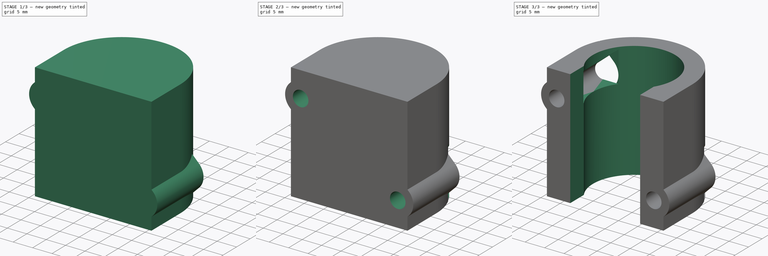
[diagram: build sequence overview — one tinted view per stage of 3, left to right]
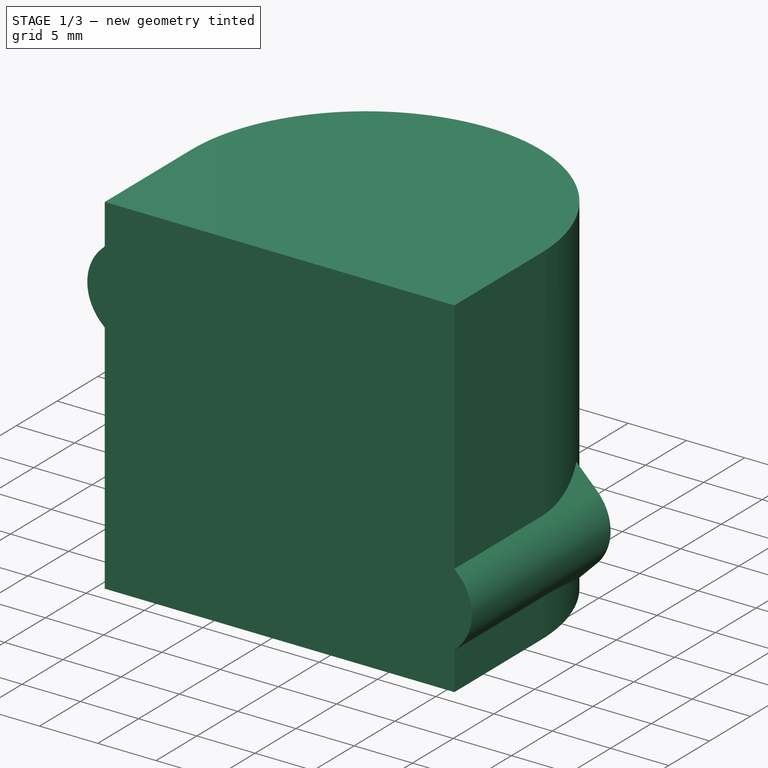
[diagram: stage 1 of 3 — iso view after this stage's code; geometry added in this stage tinted green]
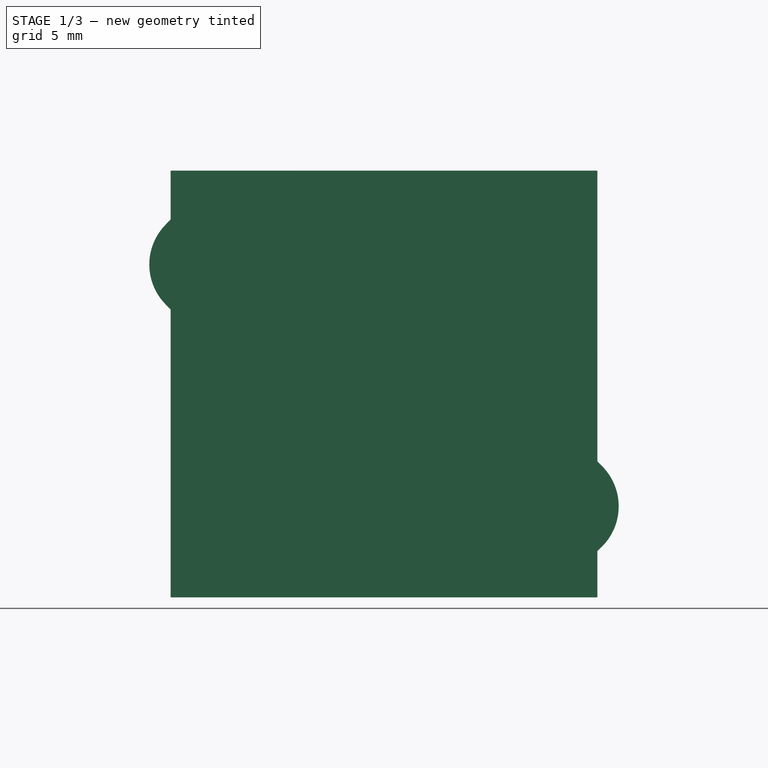
[diagram: stage 1 of 3 — front view after this stage's code; geometry added in this stage tinted green]
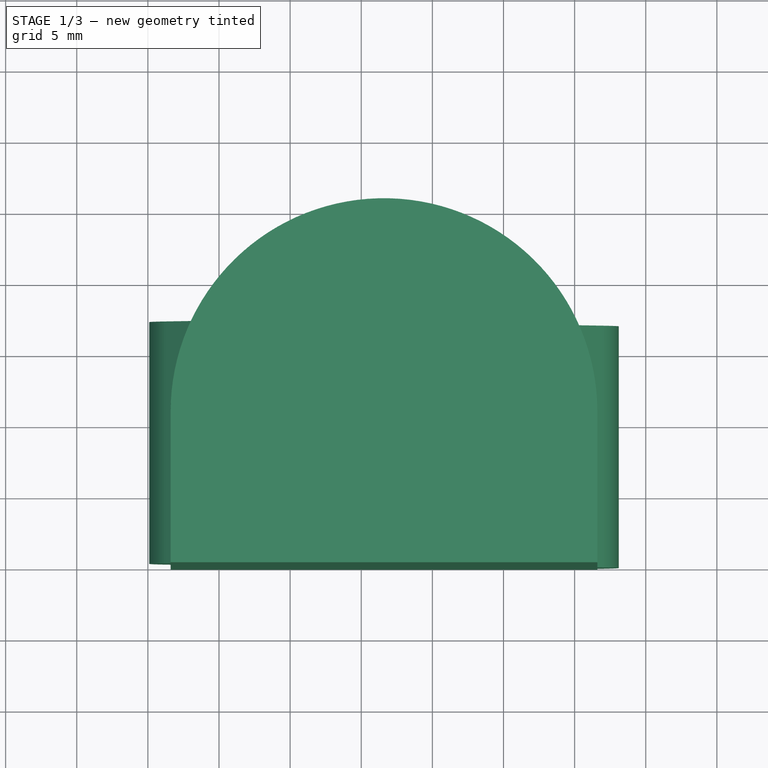
[diagram: stage 1 of 3 — top view after this stage's code; geometry added in this stage tinted green]
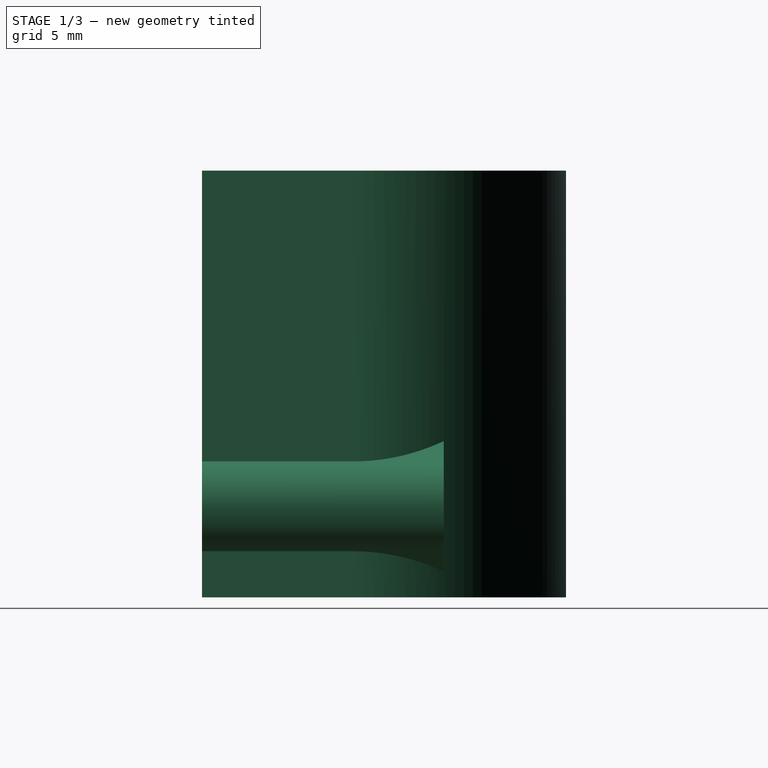
[diagram: stage 1 of 3 — right view after this stage's code; geometry added in this stage tinted green]
FCSTD DOCUMENT  (FreeCAD 0.17R13541 (Git))
Label: 16_492_z-bearing-clamp
License: All rights reserved
LicenseURL: http://en.wikipedia.org/wiki/All_rights_reserved
objects: Sketcher::SketchObject×6, PartDesign::Pocket×4, PartDesign::Pad×2, PartDesign::Body×1
note: 19 computed .brp shape members not serialized (recipe doc carries the construction recipe); baked Part::Feature solids carry a one-line shape summary decoded from their .brp

FEATURE [Sketcher::SketchObject] Sketch
  AttachmentOffset = pos=(0,0,1) rot=(0,0,1;0rad)
  MapMode = 5
  Placement = pos=(0,0,1) rot=(0,0,1;0rad)
  Support = -> [XY_Plane]
  expr: Constraints[14] = 21.199999999999999 / 2
  sketch-geometry (9):
    g0: LineSegment StartX=1.6 StartY=0 StartZ=0 EndX=1.6 EndY=10.6 EndZ=0
    g1: LineSegment StartX=31.6 StartY=0 StartZ=0 EndX=31.6 EndY=10.6 EndZ=0
    g2: ArcOfCircle CenterX=16.6 CenterY=10.6 CenterZ=0 NormalX=0 NormalY=0 NormalZ=1 AngleXU=0 Radius=15 StartAngle=0 EndAngle=3.14159
    g3: ArcOfCircle [constr] CenterX=16.6 CenterY=10.6 CenterZ=0 NormalX=0 NormalY=0 NormalZ=1 AngleXU=0 Radius=10.6 StartAngle=5.72659 EndAngle=9.98138
    g4: LineSegment [constr] StartX=7.6 StartY=5 StartZ=0 EndX=7.6 EndY=0 EndZ=0
    g5: LineSegment [constr] StartX=25.6 StartY=5 StartZ=0 EndX=25.6 EndY=0 EndZ=0
    g6: LineSegment [constr] StartX=1.6 StartY=0 StartZ=0 EndX=7.6 EndY=0 EndZ=0
    g7: LineSegment [constr] StartX=25.6 StartY=0 StartZ=0 EndX=31.6 EndY=0 EndZ=0
    g8: LineSegment StartX=1.6 StartY=0 StartZ=0 EndX=31.6 EndY=0 EndZ=0
  constraints (25):
    c: Vertical(g0)
    c: Vertical(g1)
    c: Distance(g0,g1) = 30
    c: PointOnObject(g0,g-1)
    c: Tangent(g2,g0) = 1.5708
    c: Tangent(g1,g2) = -1.5708
    c: DistanceY(g-1,g2) = 10.6
    c: Coincident(g3,g2)
    c: Vertical(g5)
    c: Vertical(g4)
    c: PointOnObject(g4,g-1)
    c: PointOnObject(g5,g-1)
    c: Coincident(g4,g3)
    c: Coincident(g5,g3)
    c: Radius(g3) = 10.6
    c: Coincident(g7,g1)
    c: Coincident(g7,g5)
    c: Coincident(g6,g0)
    c: Coincident(g6,g4)
    c: Distance(g4,g5) = 18
    c: Coincident(g8,g0)
    c: Coincident(g8,g1)
    c: Equal(g4,g5)
    c: PointOnObject(g1,g-1)
    c: Distance(g-1,g0) = 1.6
FEATURE [PartDesign::Pad] Pad  label="MainBearingClamp"
  Length = 30
  Length2 = 100
  Profile = -> Sketch
  Type = 0
FEATURE [Sketcher::SketchObject] Sketch001
  MapMode = 5
  Placement = pos=(0,0,0) rot=(1,0,0;1.5708rad)
  Support = -> [XZ_Plane]
  sketch-geometry (22):
    g0: Circle [constr] CenterX=29.1 CenterY=7.4 CenterZ=0 NormalX=0 NormalY=0 NormalZ=1 AngleXU=0 Radius=2
    g1: Circle [constr] CenterX=4.1 CenterY=24.4 CenterZ=0 NormalX=0 NormalY=0 NormalZ=1 AngleXU=0 Radius=2
    g2: LineSegment [constr] StartX=1.6 StartY=31 StartZ=0 EndX=31.6 EndY=31 EndZ=0
    g3: LineSegment [constr] StartX=31.6 StartY=31 StartZ=0 EndX=31.6 EndY=1 EndZ=0
    g4: LineSegment [constr] StartX=31.6 StartY=1 StartZ=0 EndX=1.6 EndY=1 EndZ=0
    g5: LineSegment [constr] StartX=1.6 StartY=1 StartZ=0 EndX=1.6 EndY=31 EndZ=0
    g6: LineSegment [constr] StartX=27.2 StartY=31 StartZ=0 EndX=27.2 EndY=1 EndZ=0
    g7: LineSegment [constr] StartX=6 StartY=1 StartZ=0 EndX=6 EndY=31 EndZ=0
    g8: ArcOfCircle CenterX=4.1 CenterY=24.4 CenterZ=0 NormalX=0 NormalY=0 NormalZ=1 AngleXU=0 Radius=4 StartAngle=2.35619 EndAngle=3.92699
    g9: ArcOfCircle CenterX=29.1 CenterY=7.4 CenterZ=0 NormalX=0 NormalY=0 NormalZ=1 AngleXU=0 Radius=4 StartAngle=5.49779 EndAngle=7.06858
    g10: LineSegment StartX=1.27157 StartY=27.2284 StartZ=0 EndX=4.1 EndY=30.0569 EndZ=0
    g11: LineSegment StartX=4.1 StartY=30.0569 StartZ=0 EndX=8.1 EndY=30.0569 EndZ=0
    g12: LineSegment StartX=8.1 StartY=30.0569 StartZ=0 EndX=8.1 EndY=18.7431 EndZ=0
    g13: LineSegment StartX=8.1 StartY=18.7431 StartZ=0 EndX=4.1 EndY=18.7431 EndZ=0
    g14: LineSegment StartX=4.1 StartY=18.7431 StartZ=0 EndX=1.27157 EndY=21.5716 EndZ=0
    g15: LineSegment StartX=31.9284 StartY=10.2284 StartZ=0 EndX=29.1 EndY=13.0569 EndZ=0
    g16: LineSegment StartX=29.1 StartY=13.0569 StartZ=0 EndX=25.1 EndY=13.0569 EndZ=0
    g17: LineSegment StartX=25.1 StartY=13.0569 StartZ=0 EndX=25.1 EndY=1.74315 EndZ=0
    g18: LineSegment StartX=25.1 StartY=1.74315 StartZ=0 EndX=29.1 EndY=1.74315 EndZ=0
    g19: LineSegment StartX=29.1 StartY=1.74315 StartZ=0 EndX=31.9284 EndY=4.57157 EndZ=0
    g20: LineSegment [constr] StartX=4.1 StartY=30.0569 StartZ=0 EndX=4.1 EndY=18.7431 EndZ=0
    g21: LineSegment [constr] StartX=29.1 StartY=13.0569 StartZ=0 EndX=29.1 EndY=1.74315 EndZ=0
  constraints (62):
    c: Radius(g0) = 2
    c: Equal(g1,g0)
    c: Coincident(g2,g3)
    c: Coincident(g3,g4)
    c: Coincident(g4,g5)
    c: Coincident(g5,g2)
    c: Horizontal(g2)
    c: Horizontal(g4)
    c: Vertical(g3)
    c: Vertical(g5)
    c: Distance(g2) = 30
    c: Distance(g3) = 30
    c: DistanceX(g-2,g2) = 1.6
    c: Vertical(g6)
    c: Vertical(g7)
    c: PointOnObject(g6,g2)
    c: PointOnObject(g7,g2)
    c: PointOnObject(g7,g4)
    c: PointOnObject(g6,g4)
    c: Distance(g7,g6) = 21.2
    c: Distance(g2,g7) = 4.4
    c: DistanceX(g1,g0) = 25
    c: DistanceY(g0,g1) = 17
    c: DistanceY(g-1,g0) = 7.4
    c: DistanceX(g-2,g0) = 29.1
    c: Coincident(g1,g8)
    c: Coincident(g9,g0)
    c: Equal(g8,g9)
    c: Radius(g9) = 4
    c: Coincident(g10,g11)
    c: Coincident(g11,g12)
    c: Coincident(g12,g13)
    c: Coincident(g13,g14)
    c: Coincident(g15,g16)
    c: Coincident(g16,g17)
    c: Coincident(g17,g18)
    c: Coincident(g18,g19)
    c: Horizontal(g13)
    c: Horizontal(g11)
    c: Horizontal(g16)
    c: Horizontal(g18)
    c: Vertical(g12)
    c: Vertical(g17)
    c: Parallel(g10,g19)
    c: Parallel(g14,g15)
    c: Tangent(g14,g8) = 1.5708
    c: Tangent(g10,g8) = 1.5708
    c: Coincident(g13,g20)
    c: Coincident(g20,g10)
    c: PointOnObject(g1,g20)
    c: Vertical(g20)
    c: Coincident(g21,g15)
    c: PointOnObject(g0,g21)
    c: Coincident(g18,g21)
    c: Tangent(g19,g9) = -1.5708
    c: Tangent(g9,g15) = -1.5708
    c: Angle(g10,g11) = 2.35619
    c: Angle(g13,g14) = 2.35619
    c: Distance(g11,g20) = 4
    c: Distance(g16,g21) = 4
    c: Vertical(g21)
    c: DistanceY(g-1,g4) = 1
FEATURE [PartDesign::Pad] Pad001  label="BoltBoss"
  BaseFeature = -> Pad
  Length = 17
  Length2 = 100
  Profile = -> Sketch001
  Reversed = true
  Type = 0
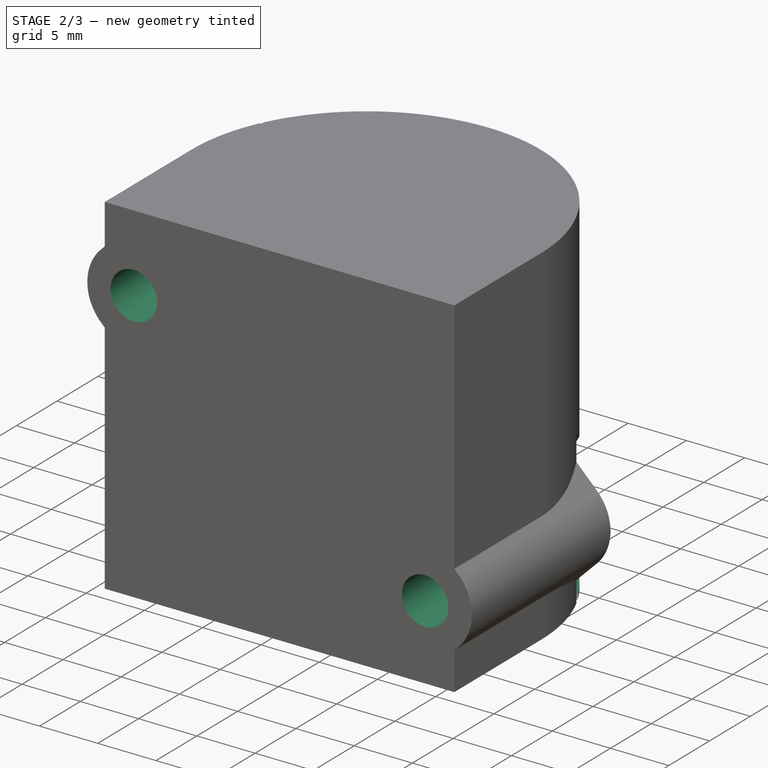
[diagram: stage 2 of 3 — iso view after this stage's code; geometry added in this stage tinted green]
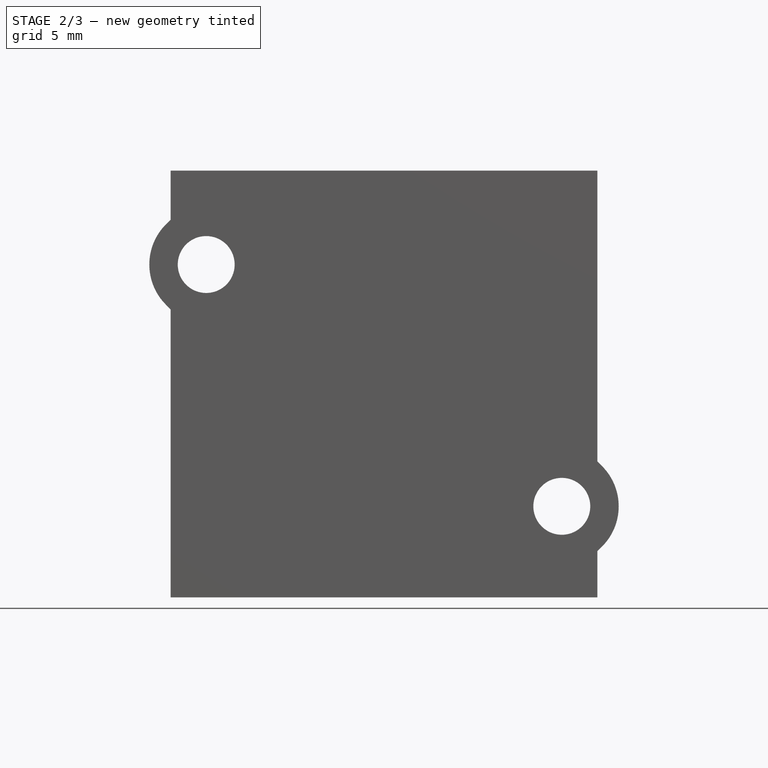
[diagram: stage 2 of 3 — front view after this stage's code; geometry added in this stage tinted green]
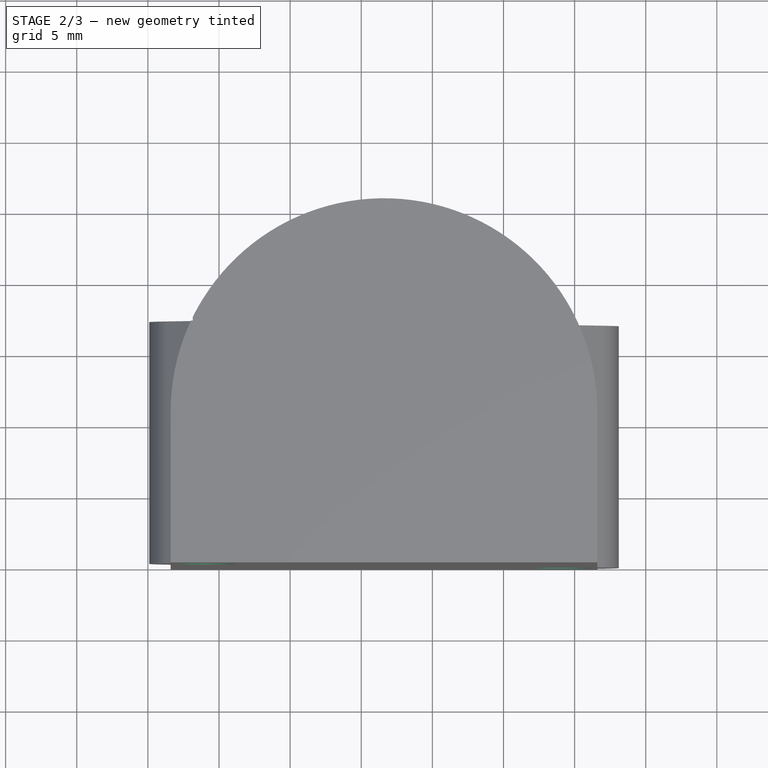
[diagram: stage 2 of 3 — top view after this stage's code; geometry added in this stage tinted green]
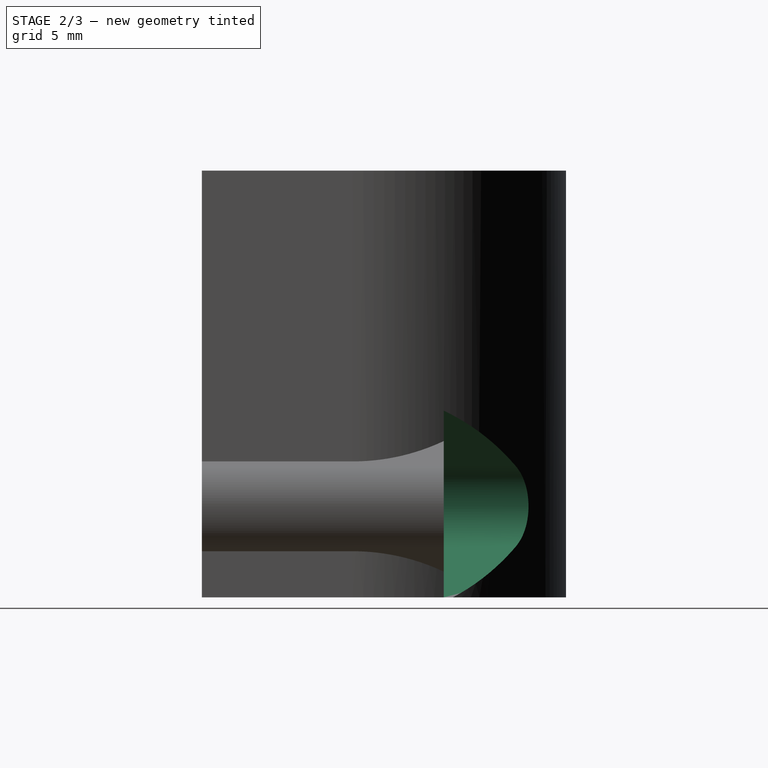
[diagram: stage 2 of 3 — right view after this stage's code; geometry added in this stage tinted green]
FEATURE [Sketcher::SketchObject] Sketch002
  MapMode = 5
  Placement = pos=(0,0,0) rot=(1,0,0;1.5708rad)
  Support = -> [XZ_Plane]
  sketch-geometry (4):
    g0: Circle [constr] CenterX=29.1 CenterY=7.4 CenterZ=0 NormalX=0 NormalY=0 NormalZ=1 AngleXU=0 Radius=4
    g1: Circle CenterX=29.1 CenterY=7.4 CenterZ=0 NormalX=0 NormalY=0 NormalZ=1 AngleXU=0 Radius=2
    g2: Circle [constr] CenterX=4.1 CenterY=24.4 CenterZ=0 NormalX=0 NormalY=0 NormalZ=1 AngleXU=0 Radius=4
    g3: Circle CenterX=4.1 CenterY=24.4 CenterZ=0 NormalX=0 NormalY=0 NormalZ=1 AngleXU=0 Radius=2
  constraints (10):
    c: Coincident(g1,g0)
    c: Radius(g1) = 2
    c: Radius(g0) = 4
    c: DistanceY(g-1,g0) = 7.4
    c: DistanceX(g-2,g0) = 29.1
    c: Coincident(g3,g2)
    c: Equal(g3,g1)
    c: Equal(g2,g0)
    c: DistanceY(g0,g2) = 17
    c: DistanceX(g2,g0) = 25
FEATURE [PartDesign::Pocket] Pocket  label="BoltHole"
  BaseFeature = -> Pad001
  Length = 5
  Length2 = 100
  Profile = -> Sketch002
  Type = 1
FEATURE [Sketcher::SketchObject] Sketch003
  AttachmentOffset = pos=(0,0,-17) rot=(0,0,1;0rad)
  MapMode = 5
  Placement = pos=(0,17,2e-12) rot=(1,0,0;1.5708rad)
  Support = -> [XZ_Plane]
  sketch-geometry (14):
    g0: Circle [constr] CenterX=29.1 CenterY=7.4 CenterZ=0 NormalX=0 NormalY=0 NormalZ=1 AngleXU=0 Radius=2
    g1: Circle [constr] CenterX=4.1 CenterY=24.4 CenterZ=0 NormalX=0 NormalY=0 NormalZ=1 AngleXU=0 Radius=2
    g2: LineSegment [constr] StartX=1.6 StartY=31 StartZ=0 EndX=31.6 EndY=31 EndZ=0
    g3: LineSegment [constr] StartX=31.6 StartY=31 StartZ=0 EndX=31.6 EndY=1 EndZ=0
    g4: LineSegment [constr] StartX=31.6 StartY=1 StartZ=0 EndX=1.6 EndY=1 EndZ=0
    g5: LineSegment [constr] StartX=1.6 StartY=1 StartZ=0 EndX=1.6 EndY=31 EndZ=0
    g6: ArcOfCircle CenterX=4.1 CenterY=24.4 CenterZ=0 NormalX=0 NormalY=0 NormalZ=1 AngleXU=0 Radius=4 StartAngle=5.49779 EndAngle=7.06858
    g7: ArcOfCircle CenterX=29.1 CenterY=7.4 CenterZ=0 NormalX=0 NormalY=0 NormalZ=1 AngleXU=0 Radius=4 StartAngle=2.35619 EndAngle=3.92699
    g8: LineSegment StartX=6.92843 StartY=27.2284 StartZ=0 EndX=1.6 EndY=32.5569 EndZ=0
    g9: LineSegment StartX=6.92843 StartY=21.5716 StartZ=0 EndX=1.6 EndY=16.2431 EndZ=0
    g10: LineSegment StartX=26.2716 StartY=10.2284 StartZ=0 EndX=31.6 EndY=15.5569 EndZ=0
    g11: LineSegment StartX=31.6 StartY=15.5569 StartZ=0 EndX=31.6 EndY=-0.756854 EndZ=0
    g12: LineSegment StartX=31.6 StartY=-0.756854 StartZ=0 EndX=26.2716 EndY=4.57157 EndZ=0
    g13: LineSegment StartX=1.6 StartY=32.5569 StartZ=0 EndX=1.6 EndY=16.2431 EndZ=0
  constraints (38):
    c: Radius(g0) = 2
    c: Equal(g1,g0)
    c: Coincident(g2,g3)
    c: Coincident(g3,g4)
    c: Coincident(g4,g5)
    c: Coincident(g5,g2)
    c: Horizontal(g2)
    c: Horizontal(g4)
    c: Vertical(g3)
    c: Vertical(g5)
    c: Distance(g2) = 30
    c: Distance(g3) = 30
    c: DistanceX(g-2,g2) = 1.6
    c: DistanceY(g-1,g3) = 1
    c: DistanceX(g1,g0) = 25
    c: DistanceY(g0,g1) = 17
    c: DistanceY(g-1,g0) = 7.4
    c: DistanceX(g-2,g0) = 29.1
    c: Equal(g7,g6)
    c: Radius(g6) = 4
    c: Coincident(g6,g1)
    c: Coincident(g7,g0)
    c: Tangent(g9,g6) = 1.5708
    c: Tangent(g6,g8) = -1.5708
    c: Angle(g5,g8) = 0.785398
    c: PointOnObject(g8,g5)
    c: PointOnObject(g9,g5)
    c: Angle(g5,g9) = 2.35619
    c: Coincident(g10,g11)
    c: Coincident(g11,g12)
    c: Tangent(g7,g10) = 1.5708
    c: Tangent(g12,g7) = 1.5708
    c: PointOnObject(g10,g3)
    c: PointOnObject(g11,g3)
    c: Parallel(g9,g10)
    c: Parallel(g8,g12)
    c: Coincident(g13,g9)
    c: Coincident(g13,g8)
FEATURE [PartDesign::Pocket] Pocket001  label="BoltCounterBore"
  BaseFeature = -> Pocket
  Length = 5
  Length2 = 100
  Profile = -> Sketch003
  Type = 1
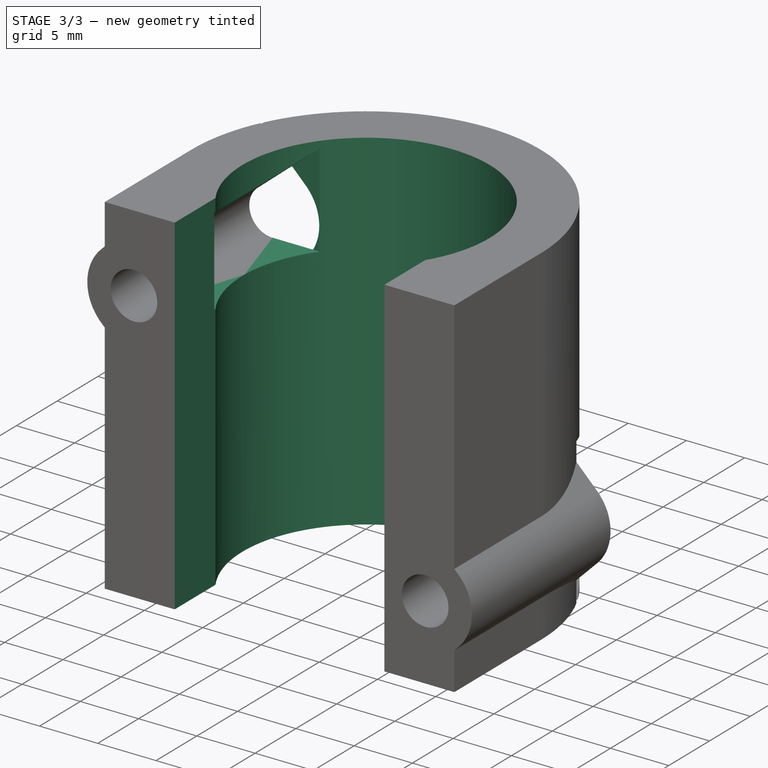
[diagram: stage 3 of 3 — iso view after this stage's code; geometry added in this stage tinted green]
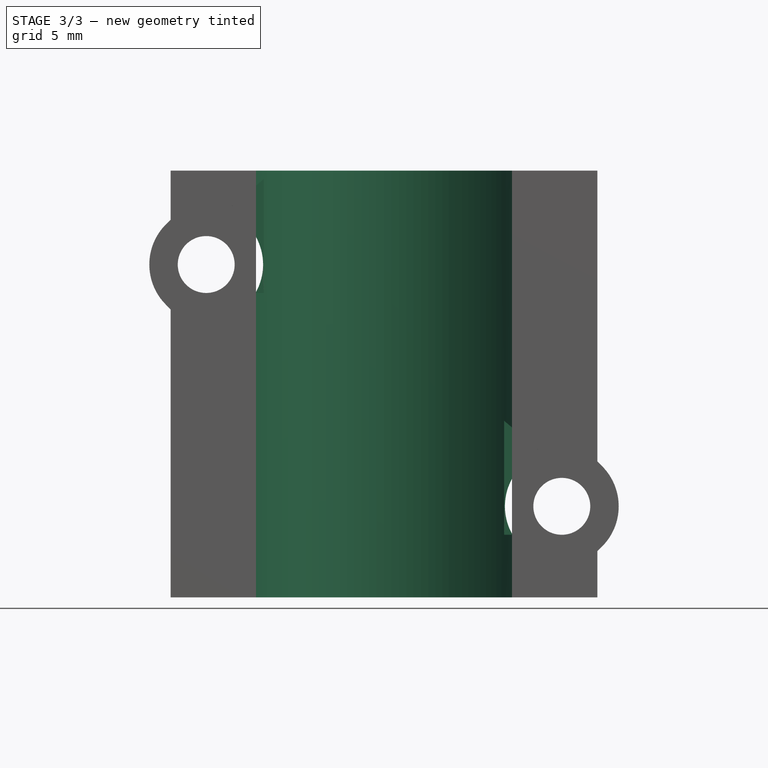
[diagram: stage 3 of 3 — front view after this stage's code; geometry added in this stage tinted green]
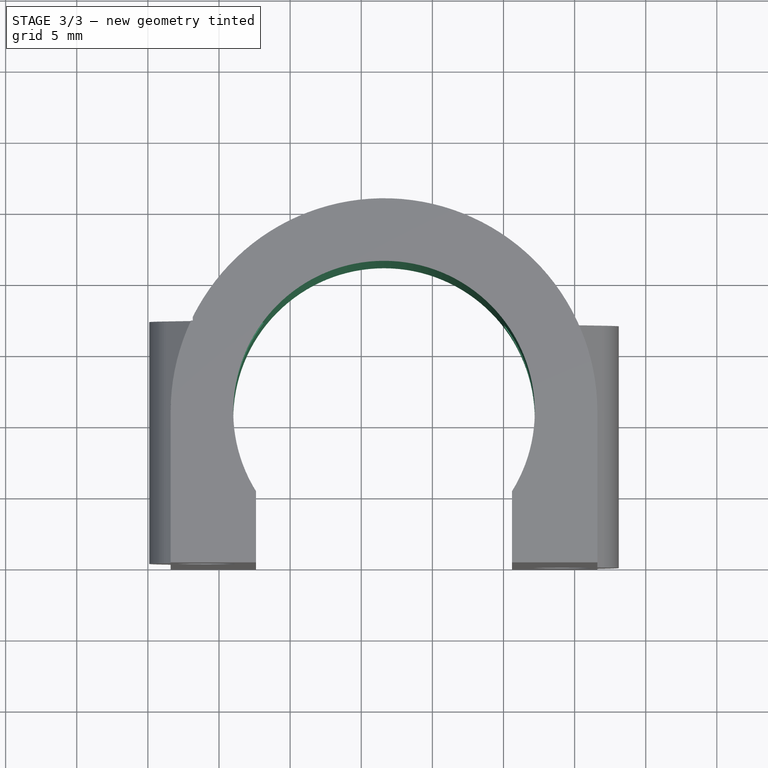
[diagram: stage 3 of 3 — top view after this stage's code; geometry added in this stage tinted green]
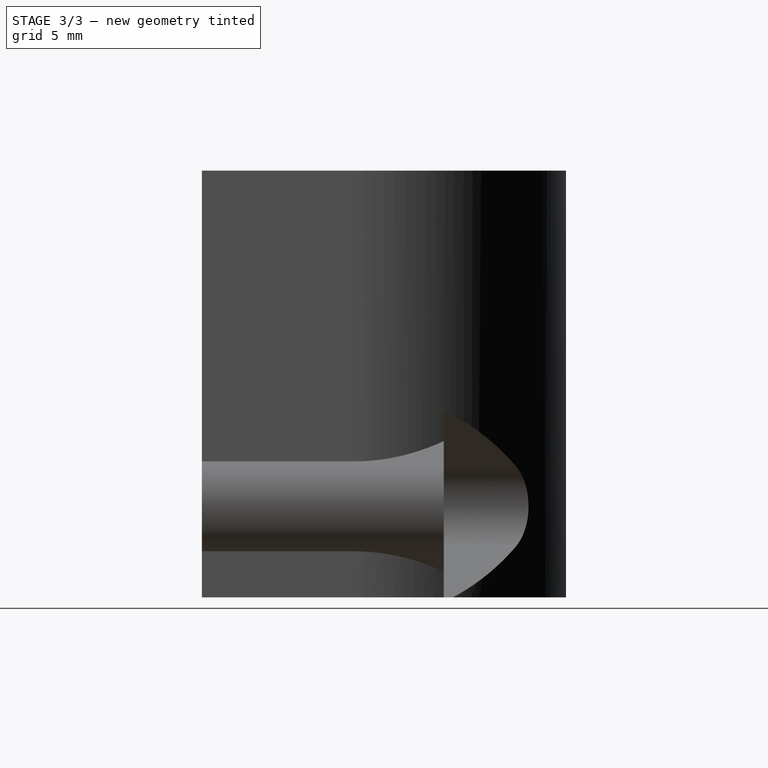
[diagram: stage 3 of 3 — right view after this stage's code; geometry added in this stage tinted green]
FEATURE [Sketcher::SketchObject] Sketch004
  AttachmentOffset = pos=(0,0,-17) rot=(0,0,1;0rad)
  MapMode = 5
  Placement = pos=(0,17,2e-12) rot=(1,0,0;1.5708rad)
  Support = -> [XZ_Plane]
  sketch-geometry (10):
    g0: Circle [constr] CenterX=29.1 CenterY=7.4 CenterZ=0 NormalX=0 NormalY=0 NormalZ=1 AngleXU=0 Radius=4
    g1: Circle [constr] CenterX=4.1 CenterY=24.4 CenterZ=0 NormalX=0 NormalY=0 NormalZ=1 AngleXU=0 Radius=4
    g2: ArcOfCircle CenterX=4.1 CenterY=24.4 CenterZ=0 NormalX=0 NormalY=0 NormalZ=1 AngleXU=0 Radius=2 StartAngle=2.26893 EndAngle=4.71239
    g3: LineSegment StartX=2.81442 StartY=25.9321 StartZ=0 EndX=9.1 EndY=31.2063 EndZ=0
    g4: LineSegment StartX=4.1 StartY=22.4 StartZ=0 EndX=9.1 EndY=22.4 EndZ=0
    g5: LineSegment StartX=9.1 StartY=22.4 StartZ=0 EndX=9.1 EndY=31.2063 EndZ=0
    g6: ArcOfCircle CenterX=29.1 CenterY=7.4 CenterZ=0 NormalX=0 NormalY=0 NormalZ=1 AngleXU=0 Radius=2 StartAngle=4.71239 EndAngle=7.15585
    g7: LineSegment StartX=29.1 StartY=5.4 StartZ=0 EndX=24.1 EndY=5.4 EndZ=0
    g8: LineSegment StartX=24.1 StartY=5.4 StartZ=0 EndX=24.1 EndY=14.2063 EndZ=0
    g9: LineSegment StartX=24.1 StartY=14.2063 StartZ=0 EndX=30.3856 EndY=8.93209 EndZ=0
  constraints (26):
    c: Radius(g0) = 4
    c: DistanceY(g-1,g0) = 7.4
    c: DistanceX(g-2,g0) = 29.1
    c: Equal(g1,g0)
    c: DistanceY(g0,g1) = 17
    c: DistanceX(g1,g0) = 25
    c: Coincident(g2,g1)
    c: Radius(g2) = 2
    c: Vertical(g5)
    c: Horizontal(g4)
    c: Tangent(g2,g4) = -1.5708
    c: Coincident(g4,g5)
    c: Coincident(g3,g5)
    c: Tangent(g3,g2) = 1.5708
    c: Angle(g-1,g3) = 0.698132
    c: Coincident(g6,g0)
    c: Coincident(g7,g8)
    c: Coincident(g8,g9)
    c: Horizontal(g7)
    c: Vertical(g8)
    c: Angle(g9) = -0.698132
    c: Radius(g6) = 2
    c: Tangent(g6,g7) = 1.5708
    c: Tangent(g6,g9) = 1.5708
    c: Equal(g4,g7)
    c: Distance(g1,g5) = 5
FEATURE [PartDesign::Pocket] Pocket002  label="BoltInternalClear"
  BaseFeature = -> Pocket001
  Length = 12.15
  Length2 = 100
  Profile = -> Sketch004
  Reversed = true
  Type = 0
FEATURE [Sketcher::SketchObject] Sketch005
  AttachmentOffset = pos=(0,0,1) rot=(0,0,1;0rad)
  MapMode = 5
  Placement = pos=(0,0,1) rot=(0,0,1;0rad)
  Support = -> [XY_Plane]
  expr: Constraints[14] = 21.199999999999999 / 2
  sketch-geometry (10):
    g0: LineSegment [constr] StartX=1.6 StartY=0 StartZ=0 EndX=1.6 EndY=10.6 EndZ=0
    g1: LineSegment [constr] StartX=31.6 StartY=0 StartZ=0 EndX=31.6 EndY=10.6 EndZ=0
    g2: ArcOfCircle [constr] CenterX=16.6 CenterY=10.6 CenterZ=0 NormalX=0 NormalY=0 NormalZ=1 AngleXU=0 Radius=15 StartAngle=0 EndAngle=3.14159
    g3: ArcOfCircle CenterX=16.6 CenterY=10.6 CenterZ=0 NormalX=0 NormalY=0 NormalZ=1 AngleXU=0 Radius=10.6 StartAngle=5.72659 EndAngle=9.98138
    g4: LineSegment StartX=7.6 StartY=5 StartZ=0 EndX=7.6 EndY=0 EndZ=0
    g5: LineSegment StartX=25.6 StartY=5 StartZ=0 EndX=25.6 EndY=0 EndZ=0
    g6: LineSegment [constr] StartX=1.6 StartY=0 StartZ=0 EndX=7.6 EndY=0 EndZ=0
    g7: LineSegment [constr] StartX=25.6 StartY=0 StartZ=0 EndX=31.6 EndY=0 EndZ=0
    g8: LineSegment [constr] StartX=1.6 StartY=0 StartZ=0 EndX=31.6 EndY=0 EndZ=0
    g9: LineSegment StartX=7.6 StartY=0 StartZ=0 EndX=25.6 EndY=0 EndZ=0
  constraints (27):
    c: Vertical(g0)
    c: Vertical(g1)
    c: Distance(g0,g1) = 30
    c: PointOnObject(g0,g-1)
    c: Tangent(g2,g0) = 1.5708
    c: Tangent(g1,g2) = -1.5708
    c: DistanceY(g-1,g2) = 10.6
    c: Coincident(g3,g2)
    c: Vertical(g5)
    c: Vertical(g4)
    c: PointOnObject(g4,g-1)
    c: PointOnObject(g5,g-1)
    c: Coincident(g4,g3)
    c: Coincident(g5,g3)
    c: Radius(g3) = 10.6
    c: Coincident(g7,g1)
    c: Coincident(g7,g5)
    c: Coincident(g6,g0)
    c: Coincident(g6,g4)
    c: Distance(g4,g5) = 18
    c: Coincident(g8,g0)
    c: Coincident(g8,g1)
    c: Equal(g4,g5)
    c: PointOnObject(g1,g-1)
    c: Distance(g-1,g0) = 1.6
    c: Coincident(g9,g5)
    c: Coincident(g9,g4)
FEATURE [PartDesign::Pocket] Pocket003
  BaseFeature = -> Pocket002
  Length = 5
  Length2 = 100
  Profile = -> Sketch005
  Reversed = true
  Type = 1
FEATURE [PartDesign::Body] Body
  Group = -> [Sketch,Pad,Sketch001,Pad001,Sketch002,Pocket,Sketch003,Pocket001,Sketch004,Pocket002,Sketch005,Pocket003]
  Origin = -> Origin
  Tip = -> Pocket003
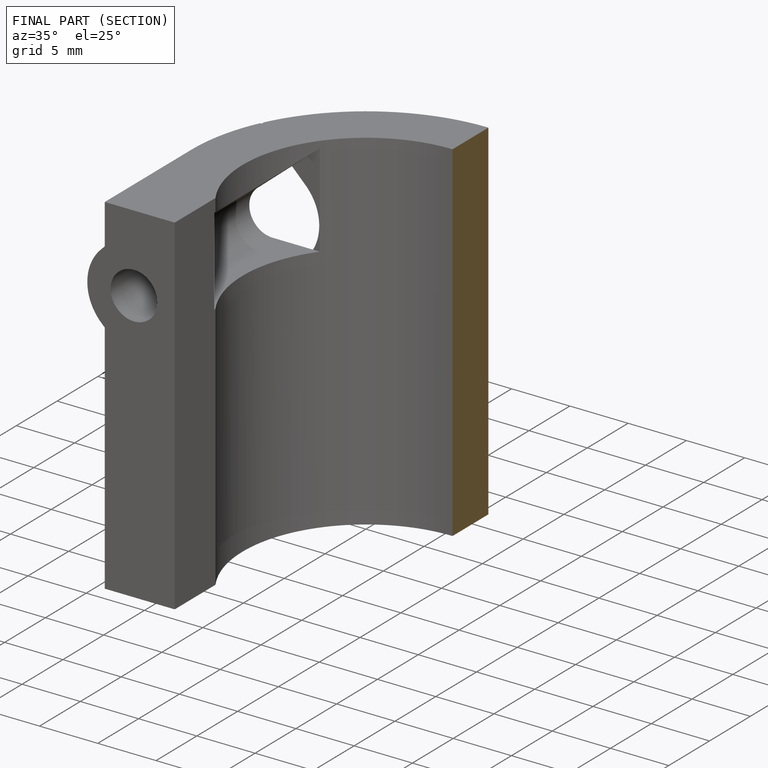
[diagram: finished part — half-section view (interior)]
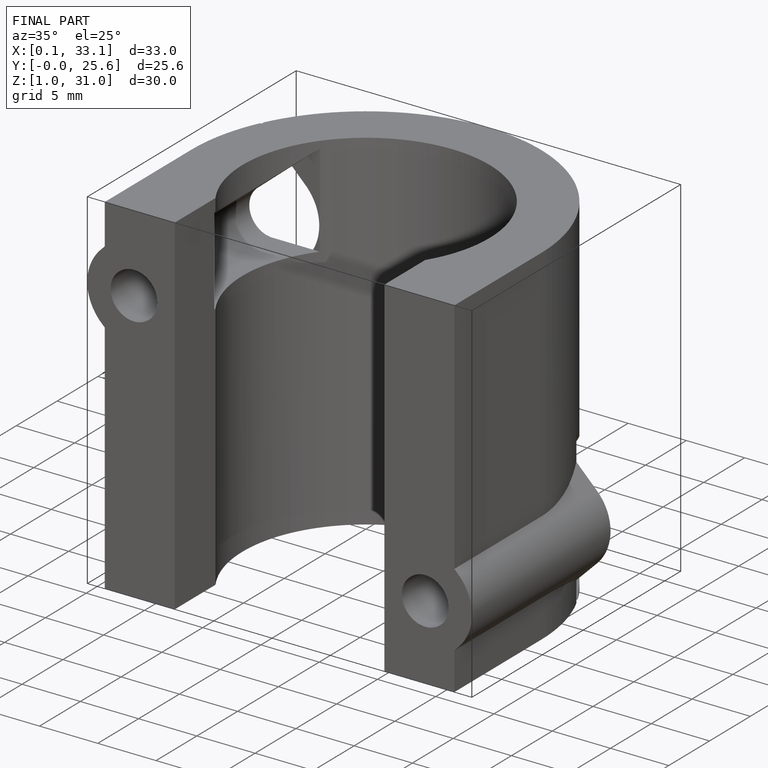
[diagram: finished part — iso view with bounding-box wireframe]
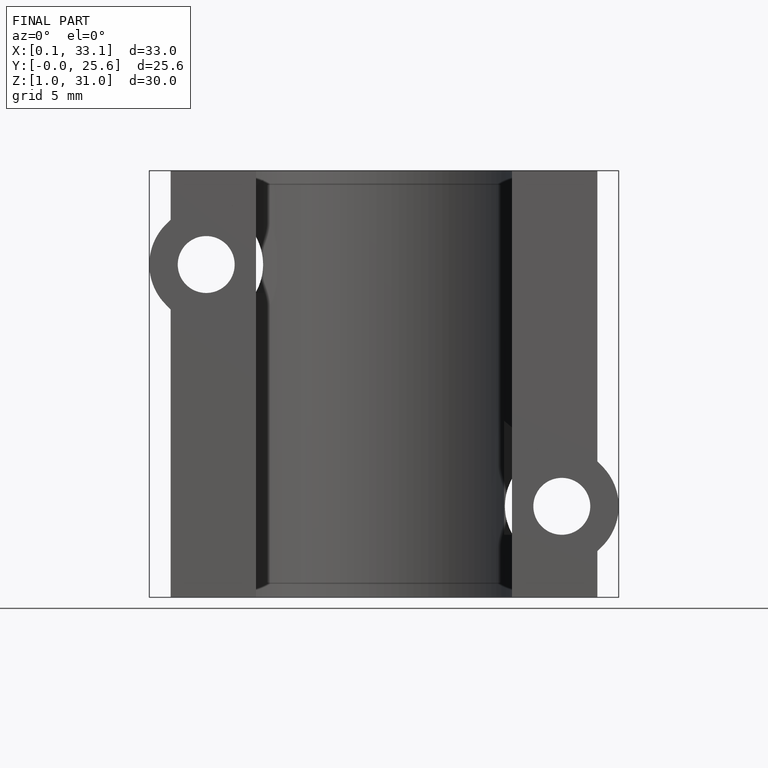
[diagram: finished part — front view with bounding-box wireframe]
